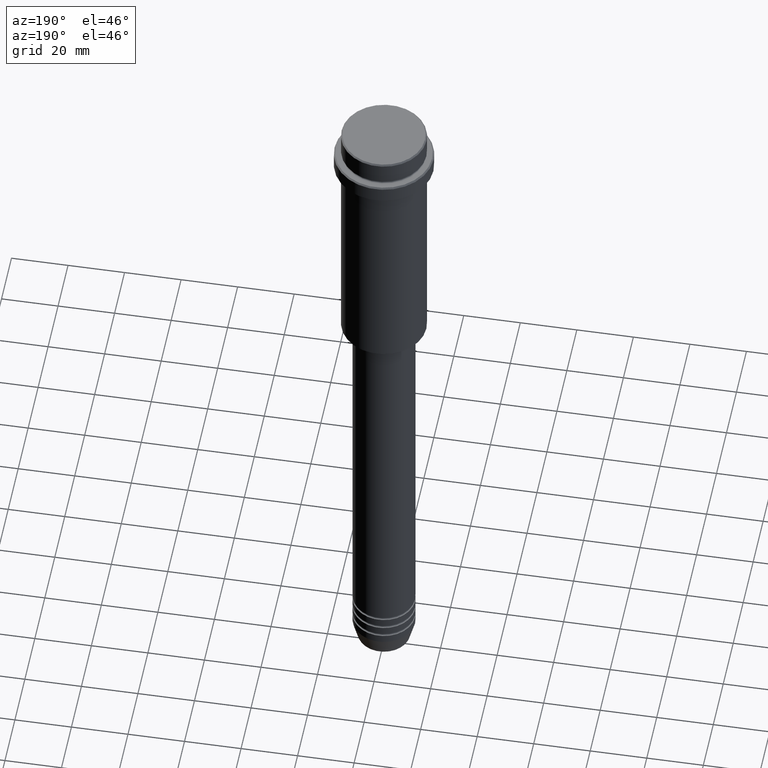
[diagram: clean part render]
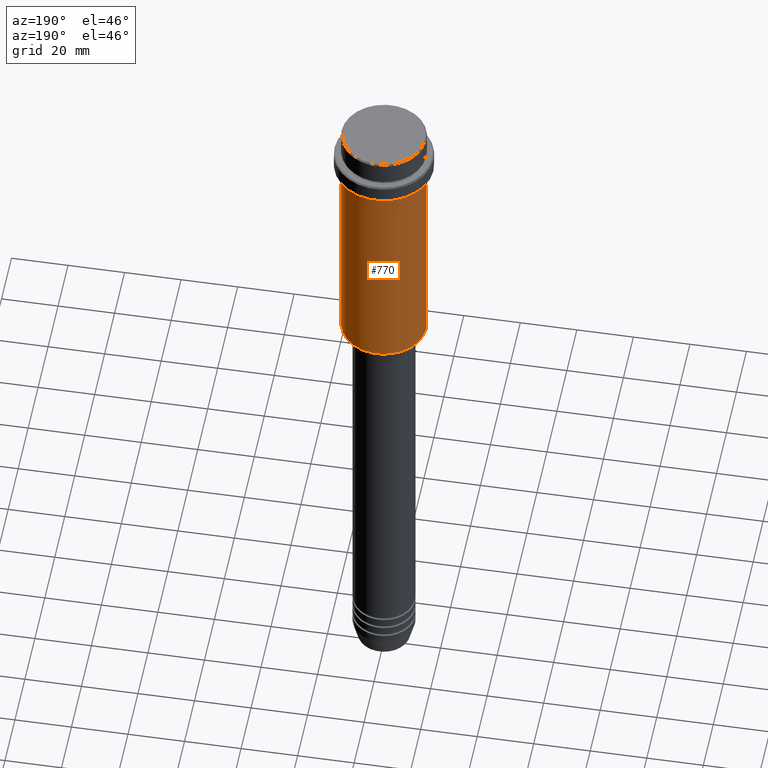
[diagram: same view with one face highlighted and labeled with its STEP entity id]
A machine part, auxiliary view. The second image highlights one B-rep face of the part: STEP entity #770.
In plain terms, the highlighted cylindrical surface (partial cylindrical patch) has radius 15 mm, axis along (-0, -0, 1).
Its self-contained STEP definition (entity closure, byte-faithful):
#11 = DIRECTION ( 'NONE',  ( -0.000000000000000000, -0.000000000000000000, 1.000000000000000000 ) ) ;
#14 = LINE ( 'NONE', #118, #1301 ) ;
#49 = AXIS2_PLACEMENT_3D ( 'NONE', #816, #11, #744 ) ;
#111 = AXIS2_PLACEMENT_3D ( 'NONE', #1385, #699, #381 ) ;
#118 = CARTESIAN_POINT ( 'NONE',  ( -15.00000000000000000, 1.836970198721029589E-15, 0.000000000000000000 ) ) ;
#128 = EDGE_CURVE ( 'NONE', #335, #1292, #1410, .T. ) ;
#132 = ORIENTED_EDGE ( 'NONE', *, *, #128, .F. ) ;
#145 = DIRECTION ( 'NONE',  ( -0.000000000000000000, -0.000000000000000000, 1.000000000000000000 ) ) ;
#250 = CARTESIAN_POINT ( 'NONE',  ( 0.000000000000000000, 0.000000000000000000, 0.000000000000000000 ) ) ;
#265 = CARTESIAN_POINT ( 'NONE',  ( -15.00000000000000000, 1.836970198721029589E-15, -94.50000000000007105 ) ) ;
#284 = EDGE_CURVE ( 'NONE', #1242, #624, #14, .T. ) ;
#302 = CARTESIAN_POINT ( 'NONE',  ( 15.00000000000000000, 0.000000000000000000, 0.000000000000000000 ) ) ;
#303 = ORIENTED_EDGE ( 'NONE', *, *, #515, .T. ) ;
#328 = DIRECTION ( 'NONE',  ( -0.000000000000000000, -0.000000000000000000, 1.000000000000000000 ) ) ;
#335 = VERTEX_POINT ( 'NONE', #680 ) ;
#349 = ORIENTED_EDGE ( 'NONE', *, *, #284, .T. ) ;
#381 = DIRECTION ( 'NONE',  ( -1.000000000000000000, 0.000000000000000000, 0.000000000000000000 ) ) ;
#408 = AXIS2_PLACEMENT_3D ( 'NONE', #250, #145, #689 ) ;
#479 = CYLINDRICAL_SURFACE ( 'NONE', #408, 15.00000000000000000 ) ;
#515 = EDGE_CURVE ( 'NONE', #335, #1242, #954, .T. ) ;
#603 = CARTESIAN_POINT ( 'NONE',  ( 15.00000000000000178, 0.000000000000000000, -16.00000000000000000 ) ) ;
#624 = VERTEX_POINT ( 'NONE', #957 ) ;
#631 = DIRECTION ( 'NONE',  ( -0.000000000000000000, -0.000000000000000000, 1.000000000000000000 ) ) ;
#632 = EDGE_LOOP ( 'NONE', ( #303, #349, #951, #132 ) ) ;
#680 = CARTESIAN_POINT ( 'NONE',  ( 15.00000000000000000, 0.000000000000000000, -94.50000000000007105 ) ) ;
#689 = DIRECTION ( 'NONE',  ( 1.000000000000000000, 0.000000000000000000, 0.000000000000000000 ) ) ;
#699 = DIRECTION ( 'NONE',  ( -0.000000000000000000, -0.000000000000000000, 1.000000000000000000 ) ) ;
#744 = DIRECTION ( 'NONE',  ( 1.000000000000000000, 0.000000000000000000, 0.000000000000000000 ) ) ;
#770 = ADVANCED_FACE ( 'NONE', ( #1366 ), #479, .T. ) ;
#816 = CARTESIAN_POINT ( 'NONE',  ( 0.000000000000000000, 0.000000000000000000, -16.00000000000000000 ) ) ;
#951 = ORIENTED_EDGE ( 'NONE', *, *, #1298, .F. ) ;
#954 = CIRCLE ( 'NONE', #111, 15.00000000000000000 ) ;
#957 = CARTESIAN_POINT ( 'NONE',  ( -15.00000000000000355, 1.836970198721029983E-15, -16.00000000000000000 ) ) ;
#1101 = CIRCLE ( 'NONE', #49, 15.00000000000000178 ) ;
#1166 = VECTOR ( 'NONE', #631, 1000.000000000000000 ) ;
#1242 = VERTEX_POINT ( 'NONE', #265 ) ;
#1292 = VERTEX_POINT ( 'NONE', #603 ) ;
#1298 = EDGE_CURVE ( 'NONE', #1292, #624, #1101, .T. ) ;
#1301 = VECTOR ( 'NONE', #328, 1000.000000000000000 ) ;
#1366 = FACE_OUTER_BOUND ( 'NONE', #632, .T. ) ;
#1385 = CARTESIAN_POINT ( 'NONE',  ( 0.000000000000000000, 0.000000000000000000, -94.50000000000007105 ) ) ;
#1410 = LINE ( 'NONE', #302, #1166 ) ;